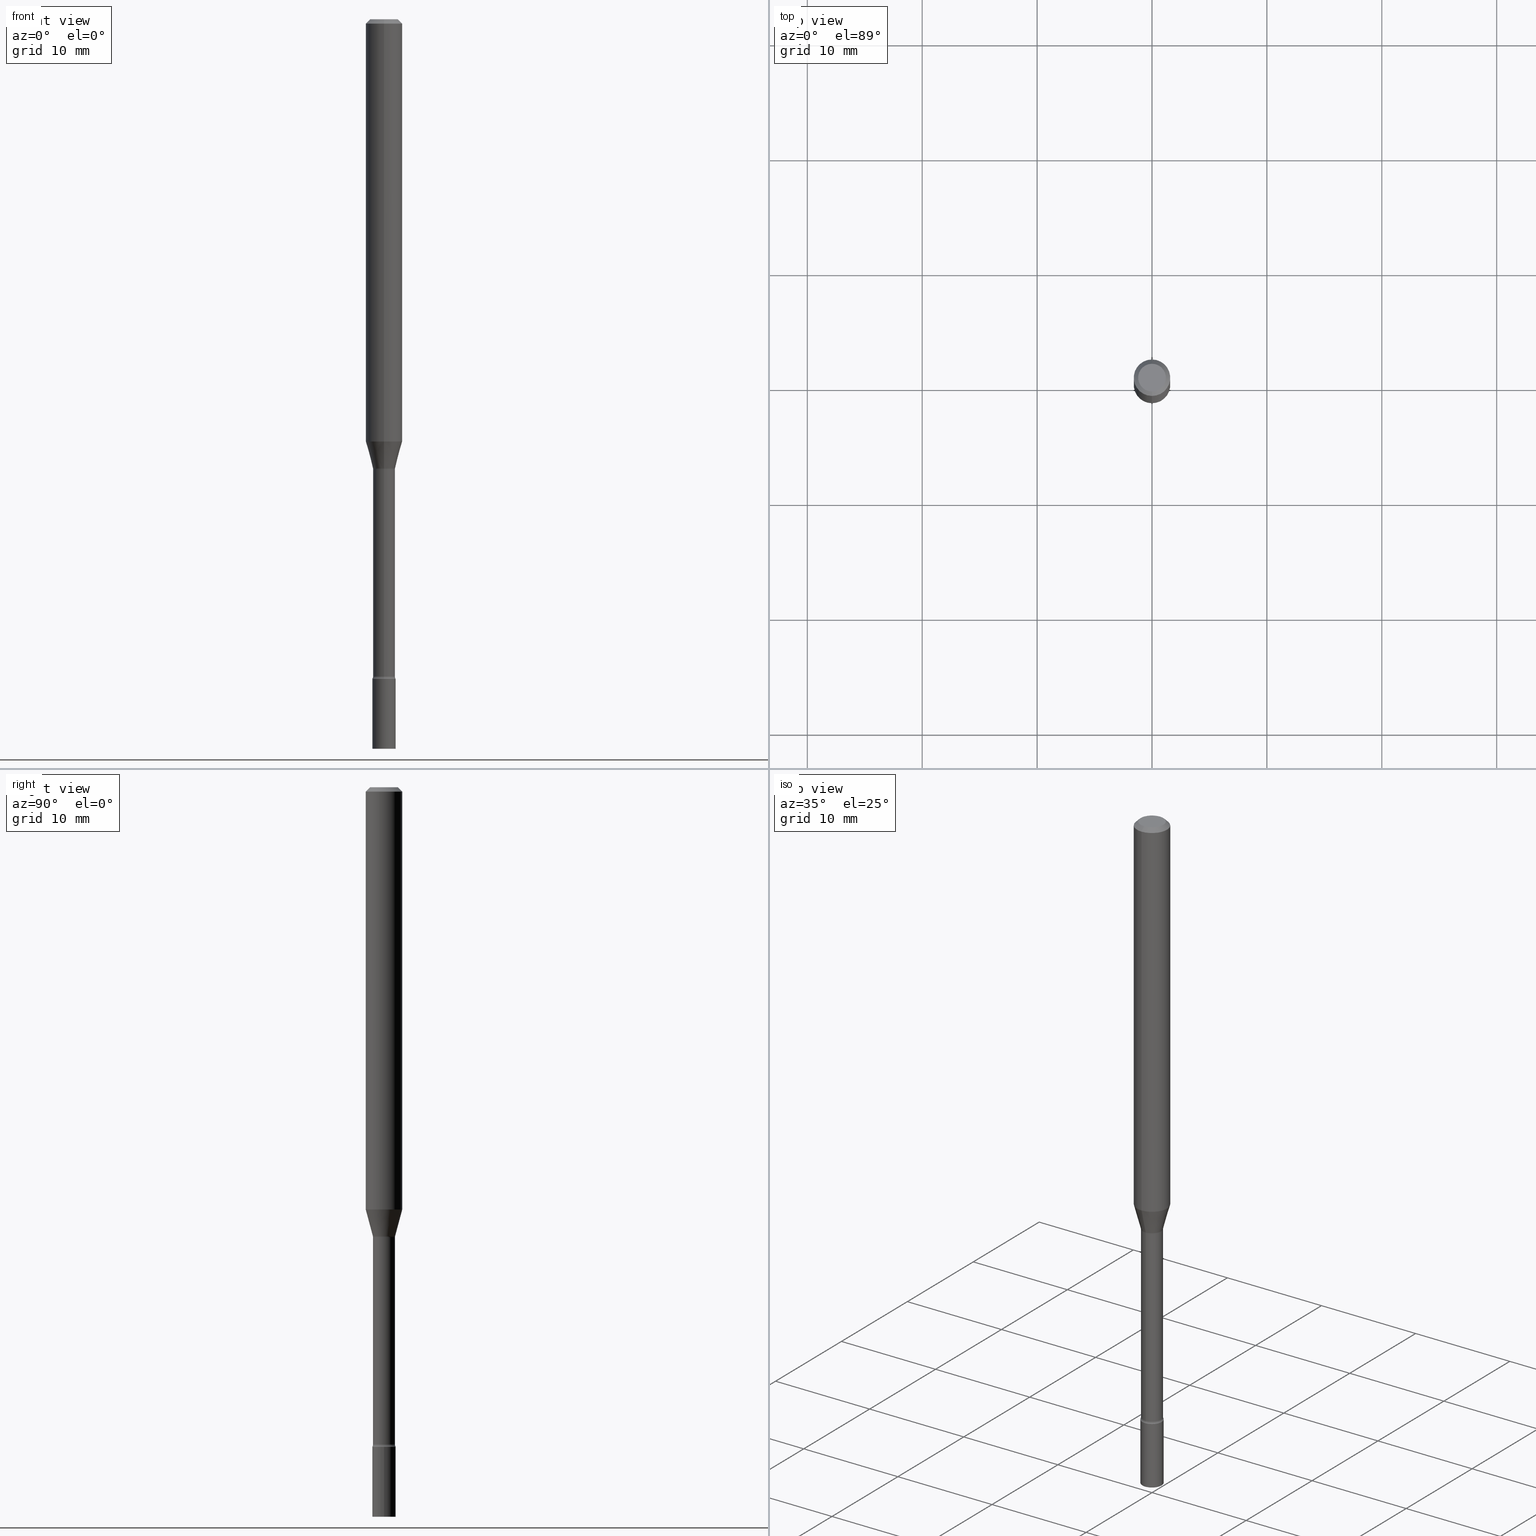
[diagram: canonical four-view strip — front | top / right | iso, engineering-drawing reading convention]
A machine part, canonical four-view strip (front | top / right | iso — engineering-drawing reading convention). The complete STEP part file that produces these views, byte-faithful:
ISO-10303-21;
HEADER;
FILE_DESCRIPTION (( 'STEP AP203' ),
    '1' );
FILE_NAME ('01357.STEP',
    '2024-03-08T21:16:27',
    ( '' ),
    ( '' ),
    'SwSTEP 2.0',
    'SolidWorks 2023',
    '' );
FILE_SCHEMA (( 'CONFIG_CONTROL_DESIGN' ));
ENDSEC;

DATA;
#1 =( NAMED_UNIT ( * ) SI_UNIT ( $, .STERADIAN. ) SOLID_ANGLE_UNIT ( ) );
#2 = CARTESIAN_POINT ( 'NONE',  ( 2.793185071075117657E-16, 0.03999999999999127864, -2.500000000000000000 ) ) ;
#3 = ADVANCED_FACE ( 'NONE', ( #245 ), #403, .F. ) ;
#4 = CARTESIAN_POINT ( 'NONE',  ( 7.070993748500762909E-46, -1.009542586406470082E-31, -2.891456245873484862E-17 ) ) ;
#5 = AXIS2_PLACEMENT_3D ( 'NONE', #284, #436, #320 ) ;
#6 = LOCAL_TIME ( 16, 16, 27.00000000000000000, #383 ) ;
#7 = DIRECTION ( 'NONE',  ( -6.982962677686266711E-15, -1.000000000000000000, 0.000000000000000000 ) ) ;
#8 = EDGE_CURVE ( 'NONE', #315, #61, #357, .T. ) ;
#9 = DIRECTION ( 'NONE',  ( -6.982962677686265922E-15, -1.000000000000000000, 0.000000000000000000 ) ) ;
#10 = EDGE_CURVE ( 'NONE', #253, #458, #125, .T. ) ;
#11 = ORIENTED_EDGE ( 'NONE', *, *, #81, .T. ) ;
#12 = ADVANCED_FACE ( 'NONE', ( #439 ), #361, .T. ) ;
#13 = CYLINDRICAL_SURFACE ( 'NONE', #507, 0.03760000000000005005 ) ;
#14 = DIRECTION ( 'NONE',  ( 6.982962677686265922E-15, 1.000000000000000000, -3.491467622403864625E-15 ) ) ;
#15 = CIRCLE ( 'NONE', #418, 0.01499999999999998557 ) ;
#16 =( GEOMETRIC_REPRESENTATION_CONTEXT ( 3 ) GLOBAL_UNCERTAINTY_ASSIGNED_CONTEXT ( ( #254 ) ) GLOBAL_UNIT_ASSIGNED_CONTEXT ( ( #438, #79, #1 ) ) REPRESENTATION_CONTEXT ( 'NONE', 'WORKASPACE' ) );
#17 = ORIENTED_EDGE ( 'NONE', *, *, #326, .T. ) ;
#18 = CARTESIAN_POINT ( 'NONE',  ( 3.668217576485247563E-31, -5.237201433605808056E-17, -0.01500000000000003067 ) ) ;
#19 = ORIENTED_EDGE ( 'NONE', *, *, #44, .T. ) ;
#20 = CARTESIAN_POINT ( 'NONE',  ( -2.625593966809491224E-16, -0.03760000000000795345, -2.251861204020249918 ) ) ;
#21 = DIRECTION ( 'NONE',  ( -2.445478384323493564E-29, 3.491467622403864625E-15, 1.000000000000000000 ) ) ;
#22 = ORIENTED_EDGE ( 'NONE', *, *, #174, .F. ) ;
#23 = CIRCLE ( 'NONE', #160, 0.04000000000000000083 ) ;
#24 = EDGE_LOOP ( 'NONE', ( #428, #491, #372, #279 ) ) ;
#25 = CIRCLE ( 'NONE', #509, 0.01499999999999998557 ) ;
#26 = LOCAL_TIME ( 16, 16, 27.00000000000000000, #304 ) ;
#27 = CC_DESIGN_PERSON_AND_ORGANIZATION_ASSIGNMENT ( #277, #416, ( #380 ) ) ;
#28 = DIRECTION ( 'NONE',  ( -6.982962677686265922E-15, -1.000000000000000000, 3.491467622403864231E-15 ) ) ;
#29 = EDGE_CURVE ( 'NONE', #315, #253, #364, .T. ) ;
#30 = APPROVAL_ROLE ( '' ) ;
#31 = CYLINDRICAL_SURFACE ( 'NONE', #488, 0.06250000000000000000 ) ;
#32 = EDGE_CURVE ( 'NONE', #112, #88, #494, .T. ) ;
#33 = DATE_TIME_ROLE ( 'classification_date' ) ;
#34 = DIRECTION ( 'NONE',  ( 1.000000000000000000, -7.105427357601001070E-15, 4.926315340564147998E-29 ) ) ;
#35 = VERTEX_POINT ( 'NONE', #241 ) ;
#36 = AXIS2_PLACEMENT_3D ( 'NONE', #220, #99, #134 ) ;
#37 = CARTESIAN_POINT ( 'NONE',  ( 2.671640686458530486E-16, 0.03759999999999462383, -1.541974787463810781 ) ) ;
#38 = DIRECTION ( 'NONE',  ( -6.982962677686265922E-15, -1.000000000000000000, 3.491467622403864625E-15 ) ) ;
#39 = FACE_OUTER_BOUND ( 'NONE', #370, .T. ) ;
#40 = DIRECTION ( 'NONE',  ( -2.445478384323493564E-29, 3.491467622403864625E-15, 1.000000000000000000 ) ) ;
#41 = AXIS2_PLACEMENT_3D ( 'NONE', #471, #401, #84 ) ;
#42 = FACE_OUTER_BOUND ( 'NONE', #425, .T. ) ;
#43 = CARTESIAN_POINT ( 'NONE',  ( -3.673038368462598469E-16, -0.05260000000000538550, -1.541974787463810781 ) ) ;
#44 = EDGE_CURVE ( 'NONE', #248, #69, #15, .T. ) ;
#45 = ORIENTED_EDGE ( 'NONE', *, *, #118, .T. ) ;
#46 = AXIS2_PLACEMENT_3D ( 'NONE', #482, #40, #38 ) ;
#47 = DIRECTION ( 'NONE',  ( -2.445478384323493564E-29, 3.491467622403864625E-15, 1.000000000000000000 ) ) ;
#48 = EDGE_LOOP ( 'NONE', ( #217, #230, #19, #415 ) ) ;
#49 = CARTESIAN_POINT ( 'NONE',  ( 3.316907271900976096E-16, 0.04749999999999999362, -1.803019932935509814E-16 ) ) ;
#50 = ORIENTED_EDGE ( 'NONE', *, *, #252, .F. ) ;
#51 = CARTESIAN_POINT ( 'NONE',  ( 0.000000000000000000, 0.000000000000000000, 0.000000000000000000 ) ) ;
#52 = ORIENTED_EDGE ( 'NONE', *, *, #362, .F. ) ;
#53 = DIRECTION ( 'NONE',  ( 2.445478384323493284E-29, -3.491467622403864625E-15, -1.000000000000000000 ) ) ;
#54 = CIRCLE ( 'NONE', #481, 0.04000000000000000083 ) ;
#55 = LOCAL_TIME ( 16, 16, 27.00000000000000000, #189 ) ;
#56 = DIRECTION ( 'NONE',  ( 2.445478384323493564E-29, -3.491467622403864625E-15, -1.000000000000000000 ) ) ;
#57 = VERTEX_POINT ( 'NONE', #158 ) ;
#58 = DIRECTION ( 'NONE',  ( -2.445478384323493564E-29, 3.491467622403864625E-15, 1.000000000000000000 ) ) ;
#59 = EDGE_CURVE ( 'NONE', #382, #92, #195, .T. ) ;
#60 = CARTESIAN_POINT ( 'NONE',  ( 0.04000000000000000083, -2.793185071074506290E-16, 1.950470710318374387E-30 ) ) ;
#61 = VERTEX_POINT ( 'NONE', #479 ) ;
#62 = CLOSED_SHELL ( 'NONE', ( #397, #116, #131, #12 ) ) ;
#63 = LOCAL_TIME ( 16, 16, 27.00000000000000000, #225 ) ;
#64 = PERSON_AND_ORGANIZATION_ROLE ( 'classification_officer' ) ;
#65 = ADVANCED_FACE ( 'NONE', ( #42 ), #76, .T. ) ;
#66 = DIRECTION ( 'NONE',  ( -2.445468806185136597E-29, 3.491481338843145583E-15, 1.000000000000000000 ) ) ;
#67 = ORIENTED_EDGE ( 'NONE', *, *, #59, .T. ) ;
#68 = CARTESIAN_POINT ( 'NONE',  ( -2.793185071073953101E-16, -0.04000000000000789036, -2.259999999999999787 ) ) ;
#69 = VERTEX_POINT ( 'NONE', #355 ) ;
#70 = CALENDAR_DATE ( 2024, 8, 3 ) ;
#71 = DIRECTION ( 'NONE',  ( 2.445478384323493564E-29, -3.491467622403864625E-15, -1.000000000000000000 ) ) ;
#72 = EDGE_LOOP ( 'NONE', ( #17, #190, #453, #231 ) ) ;
#73 = APPROVAL ( #191, 'UNSPECIFIED' ) ;
#74 = CC_DESIGN_APPROVAL ( #394, ( #380 ) ) ;
#75 = DIRECTION ( 'NONE',  ( -6.982962677686265922E-15, -1.000000000000000000, 0.000000000000000000 ) ) ;
#76 = CYLINDRICAL_SURFACE ( 'NONE', #201, 0.06250000000000000000 ) ;
#77 = PERSON_AND_ORGANIZATION_ROLE ( 'design_owner' ) ;
#78 = DIRECTION ( 'NONE',  ( -2.438088387897960049E-29, 3.491481338843145188E-15, 1.000000000000000000 ) ) ;
#79 =( NAMED_UNIT ( * ) PLANE_ANGLE_UNIT ( ) SI_UNIT ( $, .RADIAN. ) );
#80 = DIRECTION ( 'NONE',  ( -1.000000000000000000, 6.982962677686265922E-15, -4.876176775795935793E-29 ) ) ;
#81 = EDGE_CURVE ( 'NONE', #376, #35, #249, .T. ) ;
#82 = ORGANIZATION ( 'UNSPECIFIED', 'UNSPECIFIED', '' ) ;
#83 = ORIENTED_EDGE ( 'NONE', *, *, #193, .T. ) ;
#84 = DIRECTION ( 'NONE',  ( -6.982962677686265922E-15, -1.000000000000000000, 3.483106191921935554E-15 ) ) ;
#85 = APPLICATION_CONTEXT ( 'configuration controlled 3d designs of mechanical parts and assemblies' ) ;
#86 = DIRECTION ( 'NONE',  ( -2.445478384323493564E-29, 3.491467622403864625E-15, 1.000000000000000000 ) ) ;
#87 = EDGE_CURVE ( 'NONE', #429, #391, #472, .T. ) ;
#88 = VERTEX_POINT ( 'NONE', #286 ) ;
#89 = FACE_OUTER_BOUND ( 'NONE', #311, .T. ) ;
#90 = ADVANCED_BREP_SHAPE_REPRESENTATION ( '01357', ( #395, #221, #329 ), #16 ) ;
#91 = CYLINDRICAL_SURFACE ( 'NONE', #298, 0.03760000000000005005 ) ;
#92 = VERTEX_POINT ( 'NONE', #159 ) ;
#93 = FACE_OUTER_BOUND ( 'NONE', #208, .T. ) ;
#94 = EDGE_LOOP ( 'NONE', ( #276, #200, #348, #504 ) ) ;
#95 = AXIS2_PLACEMENT_3D ( 'NONE', #454, #366, #9 ) ;
#96 = DIRECTION ( 'NONE',  ( -2.445468806185136597E-29, 3.491481338843145583E-15, 1.000000000000000000 ) ) ;
#97 = LINE ( 'NONE', #299, #120 ) ;
#98 = ORIENTED_EDGE ( 'NONE', *, *, #81, .F. ) ;
#99 = DIRECTION ( 'NONE',  ( -2.445468806185136597E-29, 3.491481338843145583E-15, 1.000000000000000000 ) ) ;
#100 = VERTEX_POINT ( 'NONE', #327 ) ;
#101 = EDGE_CURVE ( 'NONE', #391, #88, #23, .T. ) ;
#102 = DIRECTION ( 'NONE',  ( 1.000000000000000000, -6.982962677686259611E-15, 0.000000000000000000 ) ) ;
#103 = AXIS2_PLACEMENT_3D ( 'NONE', #282, #78, #396 ) ;
#104 = AXIS2_PLACEMENT_3D ( 'NONE', #384, #314, #344 ) ;
#105 = DIRECTION ( 'NONE',  ( -6.982962677686266711E-15, -1.000000000000000000, 3.491467622403864625E-15 ) ) ;
#106 = ORIENTED_EDGE ( 'NONE', *, *, #193, .F. ) ;
#107 = ORIENTED_EDGE ( 'NONE', *, *, #378, .F. ) ;
#108 = PERSON_AND_ORGANIZATION_ROLE ( 'creator' ) ;
#109 = DIRECTION ( 'NONE',  ( -6.982962677686265922E-15, -1.000000000000000000, 0.000000000000000000 ) ) ;
#110 = EDGE_LOOP ( 'NONE', ( #246, #460 ) ) ;
#111 = LENGTH_MEASURE_WITH_UNIT ( LENGTH_MEASURE( 0.02539999999999999897 ), #283 );
#112 = VERTEX_POINT ( 'NONE', #121 ) ;
#113 = AXIS2_PLACEMENT_3D ( 'NONE', #265, #421, #102 ) ;
#114 = CARTESIAN_POINT ( 'NONE',  ( 3.574424759935166620E-16, 0.03811111260565865078, -1.538092501787273081 ) ) ;
#115 = PLANE ( 'NONE',  #103 ) ;
#116 = ADVANCED_FACE ( 'NONE', ( #444 ), #115, .T. ) ;
#117 = CARTESIAN_POINT ( 'NONE',  ( -4.364351673553916201E-16, -0.06250000000000000000, 2.182167264002415144E-16 ) ) ;
#118 = EDGE_CURVE ( 'NONE', #61, #458, #194, .T. ) ;
#119 = DIRECTION ( 'NONE',  ( -6.982962677686266711E-15, -1.000000000000000000, 3.491467622403864625E-15 ) ) ;
#120 = VECTOR ( 'NONE', #466, 39.37007874015748143 ) ;
#121 = CARTESIAN_POINT ( 'NONE',  ( 2.756905814749742978E-16, 0.03759999999999222992, -2.251861204020249918 ) ) ;
#122 = CC_DESIGN_PERSON_AND_ORGANIZATION_ASSIGNMENT ( #141, #64, ( #128 ) ) ;
#123 = DIRECTION ( 'NONE',  ( -2.445478384323493564E-29, 3.491467622403864625E-15, 1.000000000000000000 ) ) ;
#124 = CARTESIAN_POINT ( 'NONE',  ( 0.000000000000000000, 0.000000000000000000, 0.000000000000000000 ) ) ;
#125 = CIRCLE ( 'NONE', #41, 0.06250000000000000000 ) ;
#126 = TOROIDAL_SURFACE ( 'NONE', #340, 0.05260000000000008419, 0.01499999999999999424 ) ;
#127 = DIRECTION ( 'NONE',  ( -6.982962677686265922E-15, -1.000000000000000000, 3.491467622403865019E-15 ) ) ;
#128 = SECURITY_CLASSIFICATION ( '', '', #387 ) ;
#129 = FACE_OUTER_BOUND ( 'NONE', #24, .T. ) ;
#130 = EDGE_LOOP ( 'NONE', ( #413, #149, #256, #180 ) ) ;
#131 = ADVANCED_FACE ( 'NONE', ( #406 ), #207, .T. ) ;
#132 = DIRECTION ( 'NONE',  ( -2.445478384323493564E-29, 3.491467622403864625E-15, 1.000000000000000000 ) ) ;
#133 = EDGE_CURVE ( 'NONE', #35, #458, #203, .T. ) ;
#134 = DIRECTION ( 'NONE',  ( 1.000000000000000000, -6.982962677686265922E-15, 4.876176775795935793E-29 ) ) ;
#135 = CIRCLE ( 'NONE', #321, 0.04749999999999999362 ) ;
#136 = ADVANCED_FACE ( 'NONE', ( #452 ), #328, .T. ) ;
#137 = APPROVAL_DATE_TIME ( #181, #492 ) ;
#138 = DIRECTION ( 'NONE',  ( -2.445478384323493564E-29, 3.491467622403864625E-15, 1.000000000000000000 ) ) ;
#139 = CALENDAR_DATE ( 2024, 8, 3 ) ;
#140 = CARTESIAN_POINT ( 'NONE',  ( 0.000000000000000000, 0.000000000000000000, 0.000000000000000000 ) ) ;
#141 = PERSON_AND_ORGANIZATION ( #206, #82 ) ;
#142 = CARTESIAN_POINT ( 'NONE',  ( -3.773273898774340269E-16, -0.04749999999999999362, 1.369301496054487147E-16 ) ) ;
#143 = AXIS2_PLACEMENT_3D ( 'NONE', #4, #322, #119 ) ;
#144 = EDGE_LOOP ( 'NONE', ( #98, #336, #235, #385 ) ) ;
#145 = AXIS2_PLACEMENT_3D ( 'NONE', #51, #96, #367 ) ;
#146 = ORIENTED_EDGE ( 'NONE', *, *, #32, .T. ) ;
#147 = VECTOR ( 'NONE', #347, 39.37007874015748854 ) ;
#148 = LINE ( 'NONE', #223, #153 ) ;
#149 = ORIENTED_EDGE ( 'NONE', *, *, #174, .T. ) ;
#150 = CARTESIAN_POINT ( 'NONE',  ( 3.761371966210820745E-29, -5.370200170252422418E-15, -1.538092501787273081 ) ) ;
#151 = ADVANCED_FACE ( 'NONE', ( #93 ), #13, .T. ) ;
#152 = CARTESIAN_POINT ( 'NONE',  ( 5.526781148571095701E-29, -7.890716826632734936E-15, -2.260000000000000231 ) ) ;
#153 = VECTOR ( 'NONE', #414, 39.37007874015748143 ) ;
#154 = DIRECTION ( 'NONE',  ( -2.445478384323493564E-29, 3.491467622403864625E-15, 1.000000000000000000 ) ) ;
#155 = CARTESIAN_POINT ( 'NONE',  ( -3.673038368462430836E-16, -0.05260000000000794596, -2.251861204020249918 ) ) ;
#156 = ADVANCED_FACE ( 'NONE', ( #296 ), #258, .T. ) ;
#157 = DIRECTION ( 'NONE',  ( -6.982962677686265922E-15, -1.000000000000000000, 0.000000000000000000 ) ) ;
#158 = CARTESIAN_POINT ( 'NONE',  ( 0.04000000000000000083, -9.008021854215314980E-15, -2.500000000000000000 ) ) ;
#159 = CARTESIAN_POINT ( 'NONE',  ( 0.04000000000000000083, -8.170066332892960135E-15, -2.260000000000000231 ) ) ;
#160 = AXIS2_PLACEMENT_3D ( 'NONE', #152, #288, #475 ) ;
#161 = ADVANCED_FACE ( 'NONE', ( #167 ), #332, .F. ) ;
#162 = CARTESIAN_POINT ( 'NONE',  ( -4.364351673553912750E-16, -0.06250000000000005551, -0.01499999999999981209 ) ) ;
#163 = FACE_OUTER_BOUND ( 'NONE', #48, .T. ) ;
#164 = DIRECTION ( 'NONE',  ( 6.982962677686265922E-15, 1.000000000000000000, -3.483106191921935554E-15 ) ) ;
#165 = VECTOR ( 'NONE', #447, 39.37007874015748143 ) ;
#166 = VECTOR ( 'NONE', #499, 39.37007874015748143 ) ;
#167 = FACE_OUTER_BOUND ( 'NONE', #461, .T. ) ;
#168 = ADVANCED_FACE ( 'NONE', ( #163 ), #455, .F. ) ;
#169 = ORIENTED_EDGE ( 'NONE', *, *, #335, .T. ) ;
#170 = DIRECTION ( 'NONE',  ( -6.982962677686265922E-15, -1.000000000000000000, 3.491467622403864625E-15 ) ) ;
#171 = CARTESIAN_POINT ( 'NONE',  ( 3.761371966210820745E-29, -5.370200170252422418E-15, -1.538092501787273081 ) ) ;
#172 = PRODUCT ( '01357', '01357', '', ( #353 ) ) ;
#173 = DIMENSIONAL_EXPONENTS ( 1.000000000000000000, 0.000000000000000000, 0.000000000000000000, 0.000000000000000000, 0.000000000000000000, 0.000000000000000000, 0.000000000000000000 ) ;
#174 = EDGE_CURVE ( 'NONE', #112, #500, #290, .T. ) ;
#175 = AXIS2_PLACEMENT_3D ( 'NONE', #520, #240, #433 ) ;
#176 = DIRECTION ( 'NONE',  ( -6.982962677686265922E-15, -1.000000000000000000, 6.829619984160658243E-15 ) ) ;
#177 = CIRCLE ( 'NONE', #281, 0.03760000000000000148 ) ;
#178 = EDGE_LOOP ( 'NONE', ( #295, #312, #443, #50 ) ) ;
#179 = DIRECTION ( 'NONE',  ( -2.445478384323493564E-29, 3.491467622403864625E-15, 1.000000000000000000 ) ) ;
#180 = ORIENTED_EDGE ( 'NONE', *, *, #437, .F. ) ;
#181 = DATE_AND_TIME ( #70, #26 ) ;
#182 = CARTESIAN_POINT ( 'NONE',  ( 2.707957421369351104E-16, 0.03811111260565865078, -1.538092501787273081 ) ) ;
#183 = ORIENTED_EDGE ( 'NONE', *, *, #8, .F. ) ;
#184 = CC_DESIGN_PERSON_AND_ORGANIZATION_ASSIGNMENT ( #236, #264, ( #380 ) ) ;
#185 = ORIENTED_EDGE ( 'NONE', *, *, #306, .F. ) ;
#186 = APPROVAL_STATUS ( 'not_yet_approved' ) ;
#187 = FACE_OUTER_BOUND ( 'NONE', #144, .T. ) ;
#188 = AXIS2_PLACEMENT_3D ( 'NONE', #477, #324, #197 ) ;
#189 = COORDINATED_UNIVERSAL_TIME_OFFSET ( 5, 0, .BEHIND. ) ;
#190 = ORIENTED_EDGE ( 'NONE', *, *, #285, .T. ) ;
#191 = APPROVAL_STATUS ( 'not_yet_approved' ) ;
#192 = DIRECTION ( 'NONE',  ( 2.438088387897960049E-29, -3.491481338843145188E-15, -1.000000000000000000 ) ) ;
#193 = EDGE_CURVE ( 'NONE', #112, #429, #310, .T. ) ;
#194 = LINE ( 'NONE', #358, #319 ) ;
#195 = CIRCLE ( 'NONE', #212, 0.04000000000000000083 ) ;
#196 = AXIS2_PLACEMENT_3D ( 'NONE', #371, #219, #289 ) ;
#197 = DIRECTION ( 'NONE',  ( -6.982962677686265922E-15, -1.000000000000000000, 3.491467622403865019E-15 ) ) ;
#198 = CARTESIAN_POINT ( 'NONE',  ( 5.526759501978408888E-29, -7.890747825785510097E-15, -2.260000000000000231 ) ) ;
#199 = DESIGN_CONTEXT ( 'detailed design', #484, 'design' ) ;
#200 = ORIENTED_EDGE ( 'NONE', *, *, #451, .F. ) ;
#201 = AXIS2_PLACEMENT_3D ( 'NONE', #317, #238, #393 ) ;
#202 = CIRCLE ( 'NONE', #448, 0.06250000000000000000 ) ;
#203 = LINE ( 'NONE', #247, #165 ) ;
#204 = ADVANCED_FACE ( 'NONE', ( #89 ), #251, .F. ) ;
#205 = CC_DESIGN_DATE_AND_TIME_ASSIGNMENT ( #464, #33, ( #128 ) ) ;
#206 = PERSON ( 'UNSPECIFIED', 'UNSPECIFIED', 'UNSPECIFIED', ('UNSPECIFIED'), ('UNSPECIFIED'), ('UNSPECIFIED') ) ;
#207 = CYLINDRICAL_SURFACE ( 'NONE', #145, 0.04000000000000000083 ) ;
#208 = EDGE_LOOP ( 'NONE', ( #22, #83, #263, #400 ) ) ;
#209 = ADVANCED_FACE ( 'NONE', ( #450 ), #91, .T. ) ;
#210 = DIRECTION ( 'NONE',  ( -2.445478384323493284E-29, 3.491467622403864625E-15, 1.000000000000000000 ) ) ;
#211 = ORIENTED_EDGE ( 'NONE', *, *, #457, .T. ) ;
#212 = AXIS2_PLACEMENT_3D ( 'NONE', #198, #325, #363 ) ;
#213 = VECTOR ( 'NONE', #123, 39.37007874015748143 ) ;
#214 = CIRCLE ( 'NONE', #292, 0.03811111260566402148 ) ;
#215 = CARTESIAN_POINT ( 'NONE',  ( 5.506856330290025342E-29, -7.862331371501561090E-15, -2.251861204020249918 ) ) ;
#216 = CC_DESIGN_SECURITY_CLASSIFICATION ( #128, ( #380 ) ) ;
#217 = ORIENTED_EDGE ( 'NONE', *, *, #457, .F. ) ;
#218 = PRODUCT_DEFINITION_SHAPE ( 'NONE', 'NONE',  #323 ) ;
#219 = DIRECTION ( 'NONE',  ( -2.445478384323493564E-29, 3.491467622403864625E-15, 1.000000000000000000 ) ) ;
#220 = CARTESIAN_POINT ( 'NONE',  ( 0.000000000000000000, 0.000000000000000000, 0.000000000000000000 ) ) ;
#221 = MANIFOLD_SOLID_BREP ( 'Body-Move/Copy2[2]', #308 ) ;
#222 = PERSON_AND_ORGANIZATION ( #206, #82 ) ;
#223 = CARTESIAN_POINT ( 'NONE',  ( -0.04000000000000000083, 2.842170943040400803E-16, -1.967574036101962509E-30 ) ) ;
#224 = CIRCLE ( 'NONE', #419, 0.06250000000000000000 ) ;
#225 = COORDINATED_UNIVERSAL_TIME_OFFSET ( 5, 0, .BEHIND. ) ;
#226 = DIRECTION ( 'NONE',  ( -2.445478384323493564E-29, 3.491467622403864625E-15, 1.000000000000000000 ) ) ;
#227 = COORDINATED_UNIVERSAL_TIME_OFFSET ( 5, 0, .BEHIND. ) ;
#228 = FACE_OUTER_BOUND ( 'NONE', #178, .T. ) ;
#229 = ADVANCED_FACE ( 'NONE', ( #129 ), #126, .F. ) ;
#230 = ORIENTED_EDGE ( 'NONE', *, *, #487, .F. ) ;
#231 = ORIENTED_EDGE ( 'NONE', *, *, #280, .F. ) ;
#232 = CARTESIAN_POINT ( 'NONE',  ( 3.668217576485247563E-31, -5.237201433605808056E-17, -0.01500000000000003067 ) ) ;
#233 = EDGE_LOOP ( 'NONE', ( #107, #342, #354, #185 ) ) ;
#234 = APPROVAL_PERSON_ORGANIZATION ( #392, #73, #343 ) ;
#235 = ORIENTED_EDGE ( 'NONE', *, *, #10, .T. ) ;
#236 = PERSON_AND_ORGANIZATION ( #206, #82 ) ;
#237 = DIRECTION ( 'NONE',  ( 0.000000000000000000, 0.000000000000000000, 1.000000000000000000 ) ) ;
#238 = DIRECTION ( 'NONE',  ( -2.445478384323493564E-29, 3.491467622403864625E-15, 1.000000000000000000 ) ) ;
#239 = PERSON_AND_ORGANIZATION ( #206, #82 ) ;
#240 = DIRECTION ( 'NONE',  ( 1.000000000000000000, -7.105427357601001070E-15, 4.926315340564147998E-29 ) ) ;
#241 = CARTESIAN_POINT ( 'NONE',  ( 3.840629472727447874E-16, 0.04749999999999999362, -1.947592745229183872E-16 ) ) ;
#242 = AXIS2_PLACEMENT_3D ( 'NONE', #485, #56, #164 ) ;
#243 = EDGE_CURVE ( 'NONE', #500, #69, #399, .T. ) ;
#244 = ORIENTED_EDGE ( 'NONE', *, *, #8, .T. ) ;
#245 = FACE_OUTER_BOUND ( 'NONE', #278, .T. ) ;
#246 = ORIENTED_EDGE ( 'NONE', *, *, #326, .F. ) ;
#247 = CARTESIAN_POINT ( 'NONE',  ( 4.364351673553919652E-16, 0.06249999999999995143, -0.01500000000000024751 ) ) ;
#248 = VERTEX_POINT ( 'NONE', #255 ) ;
#249 = CIRCLE ( 'NONE', #143, 0.04749999999999999362 ) ;
#250 = AXIS2_PLACEMENT_3D ( 'NONE', #49, #53, #14 ) ;
#251 = PLANE ( 'NONE',  #250 ) ;
#252 = EDGE_CURVE ( 'NONE', #458, #253, #224, .T. ) ;
#253 = VERTEX_POINT ( 'NONE', #162 ) ;
#254 = UNCERTAINTY_MEASURE_WITH_UNIT (LENGTH_MEASURE( 1.000000000000000082E-05 ), #438, 'distance_accuracy_value', 'NONE');
#255 = CARTESIAN_POINT ( 'NONE',  ( -2.661284769304128200E-16, -0.03811111260566939218, -1.538092501787273081 ) ) ;
#256 = ORIENTED_EDGE ( 'NONE', *, *, #356, .F. ) ;
#257 = CARTESIAN_POINT ( 'NONE',  ( 2.793185071075058985E-16, 0.03999999999999211131, -2.260000000000000675 ) ) ;
#258 = CONICAL_SURFACE ( 'NONE', #95, 0.03811111260566402148, 0.2617993877991499629 ) ;
#259 = CARTESIAN_POINT ( 'NONE',  ( 2.671640686457979762E-16, 0.03760000000000005005, -1.312791826023854775E-16 ) ) ;
#260 = EDGE_CURVE ( 'NONE', #92, #382, #54, .T. ) ;
#261 = EDGE_LOOP ( 'NONE', ( #269, #169, #501, #410 ) ) ;
#262 = CARTESIAN_POINT ( 'NONE',  ( 7.070993748500762909E-46, -1.009542586406470082E-31, -2.891456245873484862E-17 ) ) ;
#263 = ORIENTED_EDGE ( 'NONE', *, *, #437, .T. ) ;
#264 = PERSON_AND_ORGANIZATION_ROLE ( 'design_supplier' ) ;
#265 = CARTESIAN_POINT ( 'NONE',  ( 6.113672015462842613E-29, -8.728703347107864943E-15, -2.500000000000000000 ) ) ;
#266 = AXIS2_PLACEMENT_3D ( 'NONE', #155, #440, #518 ) ;
#267 = CARTESIAN_POINT ( 'NONE',  ( 6.113672015462842613E-29, -8.728703347107864943E-15, -2.500000000000000000 ) ) ;
#268 = CIRCLE ( 'NONE', #473, 0.03811111260566402148 ) ;
#269 = ORIENTED_EDGE ( 'NONE', *, *, #285, .F. ) ;
#270 = APPROVAL_PERSON_ORGANIZATION ( #222, #394, #30 ) ;
#271 = EDGE_CURVE ( 'NONE', #376, #253, #381, .T. ) ;
#272 = CARTESIAN_POINT ( 'NONE',  ( 3.737454790098503724E-16, 0.05259999999999460940, -1.541974787463811225 ) ) ;
#273 = ORIENTED_EDGE ( 'NONE', *, *, #44, .F. ) ;
#274 = CALENDAR_DATE ( 2024, 8, 3 ) ;
#275 = LINE ( 'NONE', #182, #147 ) ;
#276 = ORIENTED_EDGE ( 'NONE', *, *, #271, .F. ) ;
#277 = PERSON_AND_ORGANIZATION ( #206, #82 ) ;
#278 = EDGE_LOOP ( 'NONE', ( #106, #146, #374, #446 ) ) ;
#279 = ORIENTED_EDGE ( 'NONE', *, *, #101, .T. ) ;
#280 = EDGE_CURVE ( 'NONE', #57, #92, #339, .T. ) ;
#281 = AXIS2_PLACEMENT_3D ( 'NONE', #459, #138, #493 ) ;
#282 = CARTESIAN_POINT ( 'NONE',  ( 5.526759501978408888E-29, -7.890747825785510097E-15, -2.260000000000000231 ) ) ;
#283 =( LENGTH_UNIT ( ) NAMED_UNIT ( * ) SI_UNIT ( $, .METRE. ) );
#284 = CARTESIAN_POINT ( 'NONE',  ( 3.538783137338422599E-29, -5.052404807963108821E-15, -1.447071934891535294 ) ) ;
#285 = EDGE_CURVE ( 'NONE', #100, #382, #148, .T. ) ;
#286 = CARTESIAN_POINT ( 'NONE',  ( 2.842170943040952512E-16, 0.03999999999999211131, -2.260000000000000675 ) ) ;
#287 = CONICAL_SURFACE ( 'NONE', #365, 0.06250000000000000000, 0.7853981633974483900 ) ;
#288 = DIRECTION ( 'NONE',  ( -2.445478384323493564E-29, 3.491467622403864625E-15, 1.000000000000000000 ) ) ;
#289 = DIRECTION ( 'NONE',  ( -6.982962677686265922E-15, -1.000000000000000000, 0.000000000000000000 ) ) ;
#290 = LINE ( 'NONE', #259, #213 ) ;
#291 = EDGE_CURVE ( 'NONE', #429, #112, #431, .T. ) ;
#292 = AXIS2_PLACEMENT_3D ( 'NONE', #150, #474, #75 ) ;
#293 = LOCAL_TIME ( 16, 16, 27.00000000000000000, #227 ) ;
#294 = CARTESIAN_POINT ( 'NONE',  ( 5.506877898928198325E-29, -7.862300483984086677E-15, -2.251861204020249918 ) ) ;
#295 = ORIENTED_EDGE ( 'NONE', *, *, #118, .F. ) ;
#296 = FACE_OUTER_BOUND ( 'NONE', #424, .T. ) ;
#297 = VECTOR ( 'NONE', #478, 39.37007874015748143 ) ;
#298 = AXIS2_PLACEMENT_3D ( 'NONE', #490, #334, #489 ) ;
#299 = CARTESIAN_POINT ( 'NONE',  ( -2.625593966810039482E-16, -0.03760000000000005005, 1.312791826023854775E-16 ) ) ;
#300 = LINE ( 'NONE', #375, #404 ) ;
#301 = ORIENTED_EDGE ( 'NONE', *, *, #101, .F. ) ;
#302 = ADVANCED_FACE ( 'NONE', ( #228 ), #31, .T. ) ;
#303 = ORIENTED_EDGE ( 'NONE', *, *, #434, .F. ) ;
#304 = COORDINATED_UNIVERSAL_TIME_OFFSET ( 5, 0, .BEHIND. ) ;
#305 = CARTESIAN_POINT ( 'NONE',  ( -4.364351673553565651E-16, -0.06250000000000509315, -1.447071934891535072 ) ) ;
#306 = EDGE_CURVE ( 'NONE', #61, #315, #202, .T. ) ;
#307 = DATE_AND_TIME ( #462, #293 ) ;
#308 = CLOSED_SHELL ( 'NONE', ( #505, #209, #3, #408, #65, #156, #476, #302, #136, #204, #161, #229, #151, #168 ) ) ;
#309 = CYLINDRICAL_SURFACE ( 'NONE', #36, 0.04000000000000000083 ) ;
#310 = CIRCLE ( 'NONE', #510, 0.03760000000000009168 ) ;
#311 = EDGE_LOOP ( 'NONE', ( #506, #11 ) ) ;
#312 = ORIENTED_EDGE ( 'NONE', *, *, #306, .T. ) ;
#313 = APPROVAL_DATE_TIME ( #508, #73 ) ;
#314 = DIRECTION ( 'NONE',  ( -2.445478384323493564E-29, 3.491467622403864625E-15, 1.000000000000000000 ) ) ;
#315 = VERTEX_POINT ( 'NONE', #305 ) ;
#316 = DIRECTION ( 'NONE',  ( 1.000000000000000000, 0.000000000000000000, 0.000000000000000000 ) ) ;
#317 = CARTESIAN_POINT ( 'NONE',  ( 0.000000000000000000, 0.000000000000000000, 0.000000000000000000 ) ) ;
#318 = FACE_OUTER_BOUND ( 'NONE', #233, .T. ) ;
#319 = VECTOR ( 'NONE', #47, 39.37007874015748143 ) ;
#320 = DIRECTION ( 'NONE',  ( -6.982962677686265922E-15, -1.000000000000000000, 4.370956789862821150E-15 ) ) ;
#321 = AXIS2_PLACEMENT_3D ( 'NONE', #262, #497, #105 ) ;
#322 = DIRECTION ( 'NONE',  ( -2.445478384323493564E-29, 3.491467622403864625E-15, 1.000000000000000000 ) ) ;
#323 = PRODUCT_DEFINITION ( 'UNKNOWN', '', #380, #199 ) ;
#324 = DIRECTION ( 'NONE',  ( -2.445478384323493564E-29, 3.491467622403864625E-15, 1.000000000000000000 ) ) ;
#325 = DIRECTION ( 'NONE',  ( -2.445468806185136597E-29, 3.491481338843145583E-15, 1.000000000000000000 ) ) ;
#326 = EDGE_CURVE ( 'NONE', #57, #100, #359, .T. ) ;
#327 = CARTESIAN_POINT ( 'NONE',  ( -0.04000000000000000083, -8.025508492142646404E-15, -2.500000000000000000 ) ) ;
#328 = CONICAL_SURFACE ( 'NONE', #242, 0.06250000000000000000, 0.7853981633974483900 ) ;
#329 = AXIS2_PLACEMENT_3D ( 'NONE', #435, #237, #316 ) ;
#330 = DIRECTION ( 'NONE',  ( -2.445468806185136597E-29, 3.491481338843145583E-15, 1.000000000000000000 ) ) ;
#331 = DIRECTION ( 'NONE',  ( -2.445478384323493564E-29, 3.491467622403864625E-15, 1.000000000000000000 ) ) ;
#332 = PLANE ( 'NONE',  #480 ) ;
#333 = AXIS2_PLACEMENT_3D ( 'NONE', #388, #21, #176 ) ;
#334 = DIRECTION ( 'NONE',  ( -2.445478384323493564E-29, 3.491467622403864625E-15, 1.000000000000000000 ) ) ;
#335 = EDGE_CURVE ( 'NONE', #100, #57, #495, .T. ) ;
#336 = ORIENTED_EDGE ( 'NONE', *, *, #271, .T. ) ;
#337 = DIRECTION ( 'NONE',  ( -6.982962677686265133E-15, -1.000000000000000000, 0.000000000000000000 ) ) ;
#338 = ORIENTED_EDGE ( 'NONE', *, *, #29, .F. ) ;
#339 = LINE ( 'NONE', #60, #166 ) ;
#340 = AXIS2_PLACEMENT_3D ( 'NONE', #215, #412, #407 ) ;
#341 = CARTESIAN_POINT ( 'NONE',  ( -4.287811248607203282E-16, -0.06250000000000005551, -0.01499999999999981209 ) ) ;
#342 = ORIENTED_EDGE ( 'NONE', *, *, #362, .T. ) ;
#343 = APPROVAL_ROLE ( '' ) ;
#344 = DIRECTION ( 'NONE',  ( -6.982962677686265133E-15, -1.000000000000000000, 0.000000000000000000 ) ) ;
#345 = EDGE_CURVE ( 'NONE', #248, #315, #300, .T. ) ;
#346 = EDGE_LOOP ( 'NONE', ( #469, #67 ) ) ;
#347 = DIRECTION ( 'NONE',  ( 1.839019923739597949E-15, 0.2588190451025246253, 0.9659258262890670910 ) ) ;
#348 = ORIENTED_EDGE ( 'NONE', *, *, #133, .T. ) ;
#349 = CIRCLE ( 'NONE', #333, 0.04000000000000000083 ) ;
#350 = DIRECTION ( 'NONE',  ( 7.105427357601001859E-15, 1.000000000000000000, 0.000000000000000000 ) ) ;
#351 = CC_DESIGN_APPROVAL ( #73, ( #323 ) ) ;
#352 = APPROVAL_ROLE ( '' ) ;
#353 = MECHANICAL_CONTEXT ( 'NONE', #85, 'mechanical' ) ;
#354 = ORIENTED_EDGE ( 'NONE', *, *, #345, .T. ) ;
#355 = CARTESIAN_POINT ( 'NONE',  ( -2.625593966809658857E-16, -0.03760000000000538606, -1.541974787463810781 ) ) ;
#356 = EDGE_CURVE ( 'NONE', #69, #500, #177, .T. ) ;
#357 = CIRCLE ( 'NONE', #5, 0.06250000000000000000 ) ;
#358 = CARTESIAN_POINT ( 'NONE',  ( 4.440892098500625669E-16, 0.06250000000000000000, -2.182167264002415144E-16 ) ) ;
#359 = CIRCLE ( 'NONE', #113, 0.04000000000000000083 ) ;
#360 = APPLICATION_PROTOCOL_DEFINITION ( 'international standard', 'config_control_design', 1994, #85 ) ;
#361 = PLANE ( 'NONE',  #430 ) ;
#362 = EDGE_CURVE ( 'NONE', #515, #248, #268, .T. ) ;
#363 = DIRECTION ( 'NONE',  ( 1.000000000000000000, -6.982962677686259611E-15, 0.000000000000000000 ) ) ;
#364 = LINE ( 'NONE', #117, #297 ) ;
#365 = AXIS2_PLACEMENT_3D ( 'NONE', #232, #71, #423 ) ;
#366 = DIRECTION ( 'NONE',  ( -2.445478384323493564E-29, 3.491467622403864625E-15, 1.000000000000000000 ) ) ;
#367 = DIRECTION ( 'NONE',  ( 1.000000000000000000, -6.982962677686265922E-15, 4.876176775795935793E-29 ) ) ;
#368 = CARTESIAN_POINT ( 'NONE',  ( 3.770851242666705328E-29, -5.383776195396521708E-15, -1.541974787463811003 ) ) ;
#369 = CC_DESIGN_DATE_AND_TIME_ASSIGNMENT ( #502, #496, ( #323 ) ) ;
#370 = EDGE_LOOP ( 'NONE', ( #52, #211, #512, #273 ) ) ;
#371 = CARTESIAN_POINT ( 'NONE',  ( 3.770866011914561974E-29, -5.383755044992975831E-15, -1.541974787463810781 ) ) ;
#372 = ORIENTED_EDGE ( 'NONE', *, *, #87, .T. ) ;
#373 = DIRECTION ( 'NONE',  ( -6.982962677686265922E-15, -1.000000000000000000, 3.483106191921935554E-15 ) ) ;
#374 = ORIENTED_EDGE ( 'NONE', *, *, #434, .T. ) ;
#375 = CARTESIAN_POINT ( 'NONE',  ( -2.661284769304128200E-16, -0.03811111260566939218, -1.538092501787273081 ) ) ;
#376 = VERTEX_POINT ( 'NONE', #142 ) ;
#377 = ORIENTED_EDGE ( 'NONE', *, *, #345, .F. ) ;
#378 = EDGE_CURVE ( 'NONE', #515, #61, #275, .T. ) ;
#379 = CONICAL_SURFACE ( 'NONE', #465, 0.03811111260566402148, 0.2617993877991499629 ) ;
#380 = PRODUCT_DEFINITION_FORMATION_WITH_SPECIFIED_SOURCE ( 'ANY', '', #172, .NOT_KNOWN. ) ;
#381 = LINE ( 'NONE', #341, #441 ) ;
#382 = VERTEX_POINT ( 'NONE', #427 ) ;
#383 = COORDINATED_UNIVERSAL_TIME_OFFSET ( 5, 0, .BEHIND. ) ;
#384 = CARTESIAN_POINT ( 'NONE',  ( 5.506877898928198325E-29, -7.862300483984086677E-15, -2.251861204020249918 ) ) ;
#385 = ORIENTED_EDGE ( 'NONE', *, *, #133, .F. ) ;
#386 = ORIENTED_EDGE ( 'NONE', *, *, #378, .T. ) ;
#387 = SECURITY_CLASSIFICATION_LEVEL ( 'unclassified' ) ;
#388 = CARTESIAN_POINT ( 'NONE',  ( 5.526781148571095701E-29, -7.890716826632734936E-15, -2.260000000000000231 ) ) ;
#389 = APPROVAL_DATE_TIME ( #307, #394 ) ;
#390 = AXIS2_PLACEMENT_3D ( 'NONE', #368, #331, #127 ) ;
#391 = VERTEX_POINT ( 'NONE', #68 ) ;
#392 = PERSON_AND_ORGANIZATION ( #206, #82 ) ;
#393 = DIRECTION ( 'NONE',  ( -6.982962677686265922E-15, -1.000000000000000000, 3.491467622403864231E-15 ) ) ;
#394 = APPROVAL ( #422, 'UNSPECIFIED' ) ;
#395 = MANIFOLD_SOLID_BREP ( 'Body-Move/Copy2[1]', #62 ) ;
#396 = DIRECTION ( 'NONE',  ( 1.000000000000000000, -6.982962677686265922E-15, 4.876176775795935793E-29 ) ) ;
#397 = ADVANCED_FACE ( 'NONE', ( #503 ), #309, .T. ) ;
#398 = DIRECTION ( 'NONE',  ( -1.000000000000000000, 6.982962677686265922E-15, -4.883557194083112340E-29 ) ) ;
#399 = CIRCLE ( 'NONE', #196, 0.03760000000000000148 ) ;
#400 = ORIENTED_EDGE ( 'NONE', *, *, #243, .F. ) ;
#401 = DIRECTION ( 'NONE',  ( -2.445478384323493564E-29, 3.491467622403864625E-15, 1.000000000000000000 ) ) ;
#402 = DIRECTION ( 'NONE',  ( -6.982962677686265922E-15, -1.000000000000000000, 3.491467622403864625E-15 ) ) ;
#403 = TOROIDAL_SURFACE ( 'NONE', #46, 0.05260000000000008419, 0.01499999999999999424 ) ;
#404 = VECTOR ( 'NONE', #417, 39.37007874015748143 ) ;
#405 = ORIENTED_EDGE ( 'NONE', *, *, #487, .T. ) ;
#406 = FACE_OUTER_BOUND ( 'NONE', #261, .T. ) ;
#407 = DIRECTION ( 'NONE',  ( -6.982962677686265922E-15, -1.000000000000000000, 3.491467622403864625E-15 ) ) ;
#408 = ADVANCED_FACE ( 'NONE', ( #187 ), #287, .T. ) ;
#409 = DIRECTION ( 'NONE',  ( -2.445478384323493564E-29, 3.491467622403864625E-15, 1.000000000000000000 ) ) ;
#410 = ORIENTED_EDGE ( 'NONE', *, *, #59, .F. ) ;
#411 = TOROIDAL_SURFACE ( 'NONE', #188, 0.05260000000000000092, 0.01499999999999998557 ) ;
#412 = DIRECTION ( 'NONE',  ( -2.445478384323493564E-29, 3.491467622403864625E-15, 1.000000000000000000 ) ) ;
#413 = ORIENTED_EDGE ( 'NONE', *, *, #291, .T. ) ;
#414 = DIRECTION ( 'NONE',  ( -2.445468806185136877E-29, 3.491481338843145188E-15, 1.000000000000000000 ) ) ;
#415 = ORIENTED_EDGE ( 'NONE', *, *, #356, .T. ) ;
#416 = PERSON_AND_ORGANIZATION_ROLE ( 'creator' ) ;
#417 = DIRECTION ( 'NONE',  ( -1.807323732225328167E-15, -0.2588190451025179084, 0.9659258262890690894 ) ) ;
#418 = AXIS2_PLACEMENT_3D ( 'NONE', #43, #398, #7 ) ;
#419 = AXIS2_PLACEMENT_3D ( 'NONE', #18, #132, #373 ) ;
#420 = CC_DESIGN_APPROVAL ( #492, ( #128 ) ) ;
#421 = DIRECTION ( 'NONE',  ( -2.445468806185136597E-29, 3.491481338843145583E-15, 1.000000000000000000 ) ) ;
#422 = APPROVAL_STATUS ( 'not_yet_approved' ) ;
#423 = DIRECTION ( 'NONE',  ( 6.982962677686265922E-15, 1.000000000000000000, -3.483106191921935554E-15 ) ) ;
#424 = EDGE_LOOP ( 'NONE', ( #405, #386, #183, #377 ) ) ;
#425 = EDGE_LOOP ( 'NONE', ( #244, #45, #470, #338 ) ) ;
#426 = PERSON_AND_ORGANIZATION ( #206, #82 ) ;
#427 = CARTESIAN_POINT ( 'NONE',  ( -0.04000000000000000083, -8.025508492142646404E-15, -2.260000000000000231 ) ) ;
#428 = ORIENTED_EDGE ( 'NONE', *, *, #32, .F. ) ;
#429 = VERTEX_POINT ( 'NONE', #20 ) ;
#430 = AXIS2_PLACEMENT_3D ( 'NONE', #2, #192, #80 ) ;
#431 = CIRCLE ( 'NONE', #104, 0.03760000000000009168 ) ;
#432 = APPLICATION_PROTOCOL_DEFINITION ( 'international standard', 'config_control_design', 1994, #484 ) ;
#433 = DIRECTION ( 'NONE',  ( 7.105427357601001859E-15, 1.000000000000000000, 0.000000000000000000 ) ) ;
#434 = EDGE_CURVE ( 'NONE', #88, #391, #349, .T. ) ;
#435 = CARTESIAN_POINT ( 'NONE',  ( 0.000000000000000000, 0.000000000000000000, 0.000000000000000000 ) ) ;
#436 = DIRECTION ( 'NONE',  ( -2.445478384323493564E-29, 3.491467622403864625E-15, 1.000000000000000000 ) ) ;
#437 = EDGE_CURVE ( 'NONE', #429, #69, #97, .T. ) ;
#438 =( CONVERSION_BASED_UNIT ( 'INCH', #111 ) LENGTH_UNIT ( ) NAMED_UNIT ( #173 ) );
#439 = FACE_OUTER_BOUND ( 'NONE', #110, .T. ) ;
#440 = DIRECTION ( 'NONE',  ( -1.000000000000000000, 6.982962677686265922E-15, -4.883557194083112340E-29 ) ) ;
#441 = VECTOR ( 'NONE', #456, 39.37007874015748143 ) ;
#442 = APPROVAL_PERSON_ORGANIZATION ( #426, #492, #352 ) ;
#443 = ORIENTED_EDGE ( 'NONE', *, *, #29, .T. ) ;
#444 = FACE_OUTER_BOUND ( 'NONE', #346, .T. ) ;
#445 = DIRECTION ( 'NONE',  ( 1.000000000000000000, -6.982962677686259611E-15, 0.000000000000000000 ) ) ;
#446 = ORIENTED_EDGE ( 'NONE', *, *, #87, .F. ) ;
#447 = DIRECTION ( 'NONE',  ( 4.937700262164548042E-15, 0.7071067811865451302, -0.7071067811865499042 ) ) ;
#448 = AXIS2_PLACEMENT_3D ( 'NONE', #463, #179, #511 ) ;
#449 = CC_DESIGN_PERSON_AND_ORGANIZATION_ASSIGNMENT ( #498, #108, ( #323 ) ) ;
#450 = FACE_OUTER_BOUND ( 'NONE', #130, .T. ) ;
#451 = EDGE_CURVE ( 'NONE', #35, #376, #135, .T. ) ;
#452 = FACE_OUTER_BOUND ( 'NONE', #94, .T. ) ;
#453 = ORIENTED_EDGE ( 'NONE', *, *, #260, .F. ) ;
#454 = CARTESIAN_POINT ( 'NONE',  ( 3.761371966210820745E-29, -5.370200170252422418E-15, -1.538092501787273081 ) ) ;
#455 = TOROIDAL_SURFACE ( 'NONE', #390, 0.05260000000000000092, 0.01499999999999998557 ) ;
#456 = DIRECTION ( 'NONE',  ( -4.851104656540964275E-15, -0.7071067811865500152, -0.7071067811865450192 ) ) ;
#457 = EDGE_CURVE ( 'NONE', #515, #500, #25, .T. ) ;
#458 = VERTEX_POINT ( 'NONE', #514 ) ;
#459 = CARTESIAN_POINT ( 'NONE',  ( 3.770866011914561974E-29, -5.383755044992975831E-15, -1.541974787463810781 ) ) ;
#460 = ORIENTED_EDGE ( 'NONE', *, *, #335, .F. ) ;
#461 = EDGE_LOOP ( 'NONE', ( #301, #303 ) ) ;
#462 = CALENDAR_DATE ( 2024, 8, 3 ) ;
#463 = CARTESIAN_POINT ( 'NONE',  ( 3.538783137338422599E-29, -5.052404807963108821E-15, -1.447071934891535294 ) ) ;
#464 = DATE_AND_TIME ( #274, #63 ) ;
#465 = AXIS2_PLACEMENT_3D ( 'NONE', #517, #154, #157 ) ;
#466 = DIRECTION ( 'NONE',  ( -2.445478384323493564E-29, 3.491467622403864625E-15, 1.000000000000000000 ) ) ;
#467 = CALENDAR_DATE ( 2024, 8, 3 ) ;
#468 = DIRECTION ( 'NONE',  ( 1.000000000000000000, -6.982962677686259611E-15, 0.000000000000000000 ) ) ;
#469 = ORIENTED_EDGE ( 'NONE', *, *, #260, .T. ) ;
#470 = ORIENTED_EDGE ( 'NONE', *, *, #10, .F. ) ;
#471 = CARTESIAN_POINT ( 'NONE',  ( 3.668217576485247563E-31, -5.237201433605808056E-17, -0.01500000000000003067 ) ) ;
#472 = CIRCLE ( 'NONE', #266, 0.01499999999999999424 ) ;
#473 = AXIS2_PLACEMENT_3D ( 'NONE', #171, #226, #109 ) ;
#474 = DIRECTION ( 'NONE',  ( -2.445478384323493564E-29, 3.491467622403864625E-15, 1.000000000000000000 ) ) ;
#475 = DIRECTION ( 'NONE',  ( -6.982962677686265922E-15, -1.000000000000000000, 6.829619984160658243E-15 ) ) ;
#476 = ADVANCED_FACE ( 'NONE', ( #318 ), #379, .T. ) ;
#477 = CARTESIAN_POINT ( 'NONE',  ( 3.770851242666705328E-29, -5.383776195396521708E-15, -1.541974787463811003 ) ) ;
#478 = DIRECTION ( 'NONE',  ( -2.445478384323493564E-29, 3.491467622403864625E-15, 1.000000000000000000 ) ) ;
#479 = CARTESIAN_POINT ( 'NONE',  ( 4.440892098500977205E-16, 0.06249999999999491379, -1.447071934891535516 ) ) ;
#480 = AXIS2_PLACEMENT_3D ( 'NONE', #257, #210, #402 ) ;
#481 = AXIS2_PLACEMENT_3D ( 'NONE', #483, #330, #445 ) ;
#482 = CARTESIAN_POINT ( 'NONE',  ( 5.506856330290025342E-29, -7.862331371501561090E-15, -2.251861204020249918 ) ) ;
#483 = CARTESIAN_POINT ( 'NONE',  ( 5.526759501978408888E-29, -7.890747825785510097E-15, -2.260000000000000231 ) ) ;
#484 = APPLICATION_CONTEXT ( 'configuration controlled 3d designs of mechanical parts and assemblies' ) ;
#485 = CARTESIAN_POINT ( 'NONE',  ( 3.668217576485247563E-31, -5.237201433605808056E-17, -0.01500000000000003067 ) ) ;
#486 = CC_DESIGN_PERSON_AND_ORGANIZATION_ASSIGNMENT ( #239, #77, ( #172 ) ) ;
#487 = EDGE_CURVE ( 'NONE', #248, #515, #214, .T. ) ;
#488 = AXIS2_PLACEMENT_3D ( 'NONE', #140, #58, #28 ) ;
#489 = DIRECTION ( 'NONE',  ( -6.982962677686265922E-15, -1.000000000000000000, 3.491467622403864625E-15 ) ) ;
#490 = CARTESIAN_POINT ( 'NONE',  ( 0.000000000000000000, 0.000000000000000000, 0.000000000000000000 ) ) ;
#491 = ORIENTED_EDGE ( 'NONE', *, *, #291, .F. ) ;
#492 = APPROVAL ( #186, 'UNSPECIFIED' ) ;
#493 = DIRECTION ( 'NONE',  ( -6.982962677686265922E-15, -1.000000000000000000, 0.000000000000000000 ) ) ;
#494 = CIRCLE ( 'NONE', #175, 0.01499999999999999424 ) ;
#495 = CIRCLE ( 'NONE', #519, 0.04000000000000000083 ) ;
#496 = DATE_TIME_ROLE ( 'creation_date' ) ;
#497 = DIRECTION ( 'NONE',  ( -2.445478384323493564E-29, 3.491467622403864625E-15, 1.000000000000000000 ) ) ;
#498 = PERSON_AND_ORGANIZATION ( #206, #82 ) ;
#499 = DIRECTION ( 'NONE',  ( -2.445468806185136877E-29, 3.491481338843145188E-15, 1.000000000000000000 ) ) ;
#500 = VERTEX_POINT ( 'NONE', #37 ) ;
#501 = ORIENTED_EDGE ( 'NONE', *, *, #280, .T. ) ;
#502 = DATE_AND_TIME ( #467, #55 ) ;
#503 = FACE_OUTER_BOUND ( 'NONE', #72, .T. ) ;
#504 = ORIENTED_EDGE ( 'NONE', *, *, #252, .T. ) ;
#505 = ADVANCED_FACE ( 'NONE', ( #39 ), #411, .F. ) ;
#506 = ORIENTED_EDGE ( 'NONE', *, *, #451, .T. ) ;
#507 = AXIS2_PLACEMENT_3D ( 'NONE', #124, #86, #170 ) ;
#508 = DATE_AND_TIME ( #139, #6 ) ;
#509 = AXIS2_PLACEMENT_3D ( 'NONE', #272, #34, #350 ) ;
#510 = AXIS2_PLACEMENT_3D ( 'NONE', #294, #409, #337 ) ;
#511 = DIRECTION ( 'NONE',  ( -6.982962677686265922E-15, -1.000000000000000000, 4.370956789862821150E-15 ) ) ;
#512 = ORIENTED_EDGE ( 'NONE', *, *, #243, .T. ) ;
#513 = SHAPE_DEFINITION_REPRESENTATION ( #218, #90 ) ;
#514 = CARTESIAN_POINT ( 'NONE',  ( 4.440892098500982135E-16, 0.06249999999999995143, -0.01500000000000024751 ) ) ;
#515 = VERTEX_POINT ( 'NONE', #114 ) ;
#516 = PRODUCT_RELATED_PRODUCT_CATEGORY ( 'detail', '', ( #172 ) ) ;
#517 = CARTESIAN_POINT ( 'NONE',  ( 3.761371966210820745E-29, -5.370200170252422418E-15, -1.538092501787273081 ) ) ;
#518 = DIRECTION ( 'NONE',  ( -6.982962677686266711E-15, -1.000000000000000000, 0.000000000000000000 ) ) ;
#519 = AXIS2_PLACEMENT_3D ( 'NONE', #267, #66, #468 ) ;
#520 = CARTESIAN_POINT ( 'NONE',  ( 3.737454790098683190E-16, 0.05259999999999222242, -2.251861204020250362 ) ) ;
ENDSEC;
END-ISO-10303-21;
